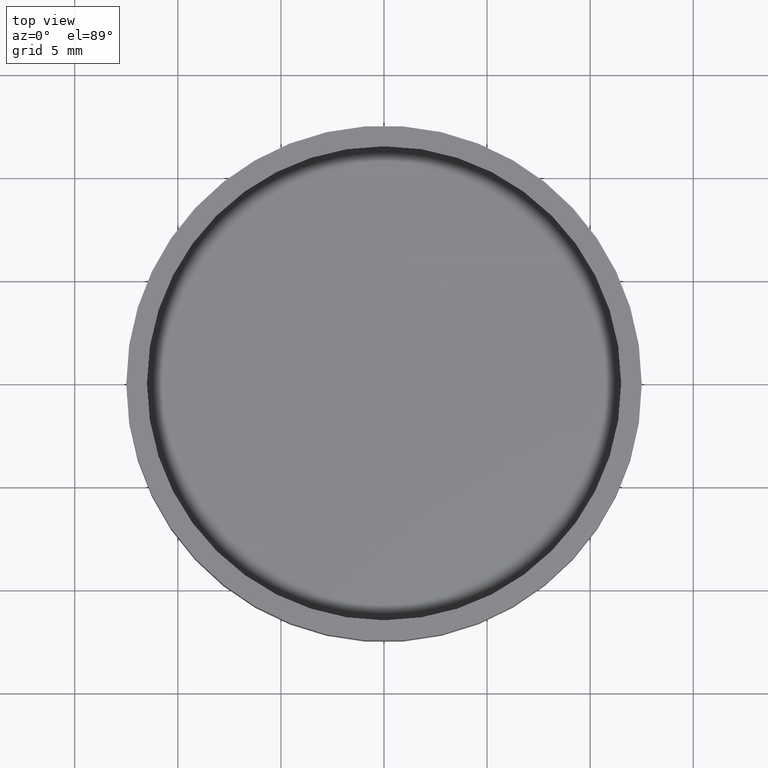
[diagram: clean part render]
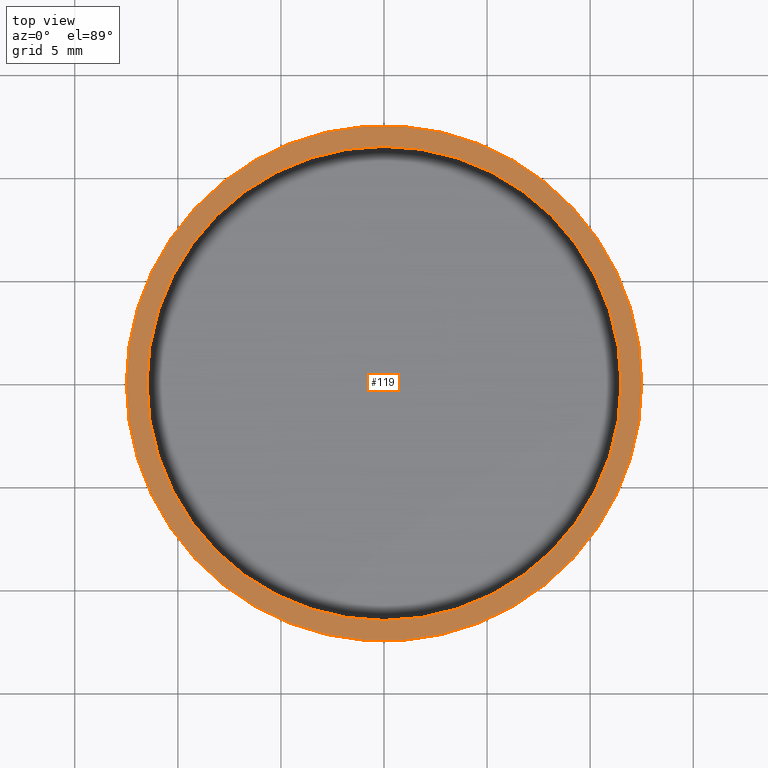
[diagram: same view with one face highlighted and labeled with its STEP entity id]
A machine part, top view. The second image highlights one B-rep face of the part: STEP entity #119.
In plain terms, the highlighted planar face has unit normal (0, 0, 1).
Its self-contained STEP definition (entity closure, byte-faithful):
#17 = AXIS2_PLACEMENT_3D ( 'NONE', #206, #388, #73 ) ;
#24 = EDGE_LOOP ( 'NONE', ( #314, #287 ) ) ;
#27 = ORIENTED_EDGE ( 'NONE', *, *, #231, .F. ) ;
#34 = CIRCLE ( 'NONE', #88, 12.50000000000000000 ) ;
#42 = CIRCLE ( 'NONE', #17, 12.50000000000000000 ) ;
#43 = DIRECTION ( 'NONE',  ( 0.000000000000000000, 0.000000000000000000, 1.000000000000000000 ) ) ;
#56 = VERTEX_POINT ( 'NONE', #349 ) ;
#73 = DIRECTION ( 'NONE',  ( 1.000000000000000000, 0.000000000000000000, 0.000000000000000000 ) ) ;
#79 = CARTESIAN_POINT ( 'NONE',  ( 0.000000000000000000, 0.000000000000000000, 3.500000000000000000 ) ) ;
#88 = AXIS2_PLACEMENT_3D ( 'NONE', #79, #43, #115 ) ;
#94 = CIRCLE ( 'NONE', #376, 11.50000000000000000 ) ;
#111 = EDGE_CURVE ( 'NONE', #56, #154, #42, .T. ) ;
#115 = DIRECTION ( 'NONE',  ( 1.000000000000000000, 0.000000000000000000, 0.000000000000000000 ) ) ;
#119 = ADVANCED_FACE ( 'NONE', ( #397, #162 ), #255, .T. ) ;
#120 = DIRECTION ( 'NONE',  ( 0.000000000000000000, 0.000000000000000000, 1.000000000000000000 ) ) ;
#126 = CARTESIAN_POINT ( 'NONE',  ( 11.50000000000000000, 0.000000000000000000, 3.500000000000000000 ) ) ;
#141 = DIRECTION ( 'NONE',  ( 0.000000000000000000, 0.000000000000000000, 1.000000000000000000 ) ) ;
#142 = CARTESIAN_POINT ( 'NONE',  ( -11.50000000000000000, 1.408343819019456176E-15, 3.500000000000000000 ) ) ;
#154 = VERTEX_POINT ( 'NONE', #168 ) ;
#156 = VERTEX_POINT ( 'NONE', #142 ) ;
#162 = FACE_OUTER_BOUND ( 'NONE', #24, .T. ) ;
#166 = EDGE_CURVE ( 'NONE', #154, #56, #34, .T. ) ;
#168 = CARTESIAN_POINT ( 'NONE',  ( 12.50000000000000000, 1.530808498934191521E-15, 3.500000000000000000 ) ) ;
#204 = AXIS2_PLACEMENT_3D ( 'NONE', #297, #324, #418 ) ;
#206 = CARTESIAN_POINT ( 'NONE',  ( 0.000000000000000000, 0.000000000000000000, 3.500000000000000000 ) ) ;
#214 = ORIENTED_EDGE ( 'NONE', *, *, #404, .F. ) ;
#228 = CARTESIAN_POINT ( 'NONE',  ( 0.000000000000000000, 0.000000000000000000, 3.500000000000000000 ) ) ;
#231 = EDGE_CURVE ( 'NONE', #373, #156, #94, .T. ) ;
#255 = PLANE ( 'NONE',  #204 ) ;
#272 = DIRECTION ( 'NONE',  ( 1.000000000000000000, 0.000000000000000000, 0.000000000000000000 ) ) ;
#285 = AXIS2_PLACEMENT_3D ( 'NONE', #228, #141, #325 ) ;
#287 = ORIENTED_EDGE ( 'NONE', *, *, #166, .T. ) ;
#294 = CIRCLE ( 'NONE', #285, 11.50000000000000000 ) ;
#297 = CARTESIAN_POINT ( 'NONE',  ( 0.000000000000000000, 0.000000000000000000, 3.500000000000000000 ) ) ;
#314 = ORIENTED_EDGE ( 'NONE', *, *, #111, .T. ) ;
#324 = DIRECTION ( 'NONE',  ( 0.000000000000000000, 0.000000000000000000, 1.000000000000000000 ) ) ;
#325 = DIRECTION ( 'NONE',  ( 1.000000000000000000, 0.000000000000000000, 0.000000000000000000 ) ) ;
#349 = CARTESIAN_POINT ( 'NONE',  ( -12.50000000000000000, 0.000000000000000000, 3.500000000000000000 ) ) ;
#373 = VERTEX_POINT ( 'NONE', #126 ) ;
#376 = AXIS2_PLACEMENT_3D ( 'NONE', #405, #120, #272 ) ;
#388 = DIRECTION ( 'NONE',  ( 0.000000000000000000, 0.000000000000000000, 1.000000000000000000 ) ) ;
#397 = FACE_BOUND ( 'NONE', #411, .T. ) ;
#404 = EDGE_CURVE ( 'NONE', #156, #373, #294, .T. ) ;
#405 = CARTESIAN_POINT ( 'NONE',  ( 0.000000000000000000, 0.000000000000000000, 3.500000000000000000 ) ) ;
#411 = EDGE_LOOP ( 'NONE', ( #27, #214 ) ) ;
#418 = DIRECTION ( 'NONE',  ( 1.000000000000000000, 0.000000000000000000, -0.000000000000000000 ) ) ;